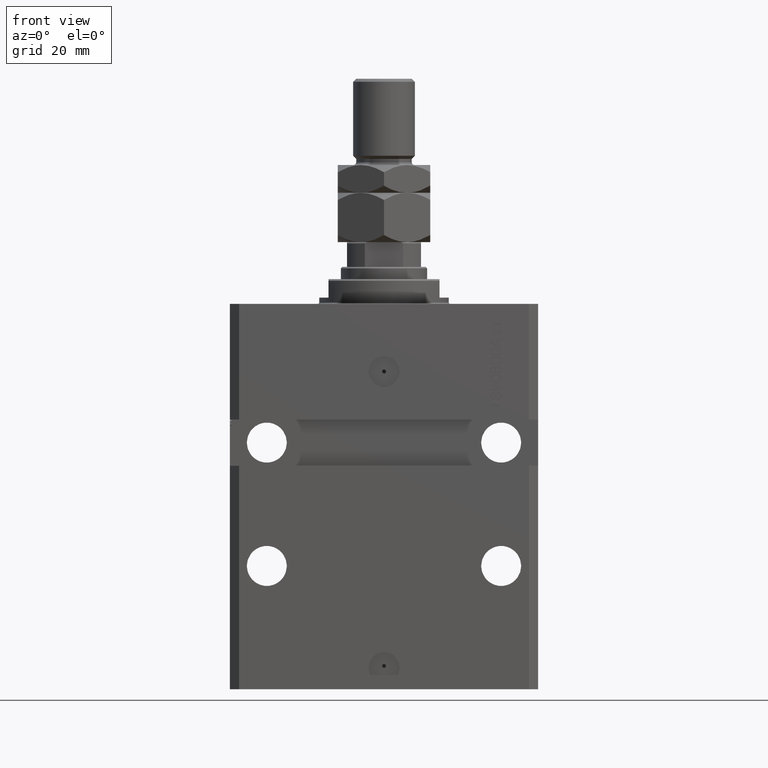
[diagram: clean part render]
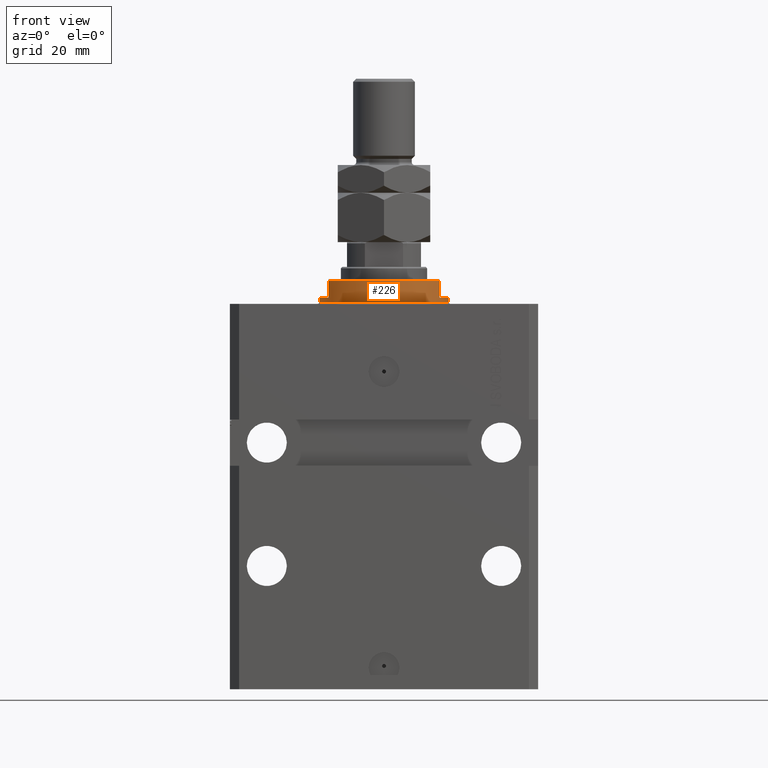
[diagram: same view with one face highlighted and labeled with its STEP entity id]
A machine part, front view. The second image highlights one B-rep face of the part: STEP entity #226.
In plain terms, the highlighted cylindrical surface (partial cylindrical patch) has radius 21 mm, axis along (0, 0, -1).
Its self-contained STEP definition (entity closure, byte-faithful):
#226 = ADVANCED_FACE ( 'NONE', ( #8007 ), #23352, .T. ) ;
#390 = CIRCLE ( 'NONE', #1179, 21.00000000000000000 ) ;
#1179 = AXIS2_PLACEMENT_3D ( 'NONE', #38164, #3935, #42176 ) ;
#1389 = AXIS2_PLACEMENT_3D ( 'NONE', #22813, #49499, #30618 ) ;
#1451 = CARTESIAN_POINT ( 'NONE',  ( 18.00000000000000000, -10.81665382639197048, -7.500000000000016875 ) ) ;
#1846 = ORIENTED_EDGE ( 'NONE', *, *, #33756, .F. ) ;
#3755 = VECTOR ( 'NONE', #30232, 1000.000000000000000 ) ;
#3935 = DIRECTION ( 'NONE',  ( 0.000000000000000000, 0.000000000000000000, -1.000000000000000000 ) ) ;
#4003 = CARTESIAN_POINT ( 'NONE',  ( -18.00000000000000000, -10.81665382639197048, -2.000000000000000000 ) ) ;
#4418 = DIRECTION ( 'NONE',  ( -0.000000000000000000, -0.000000000000000000, 1.000000000000000000 ) ) ;
#5644 = LINE ( 'NONE', #24774, #17434 ) ;
#5724 = VECTOR ( 'NONE', #7250, 1000.000000000000000 ) ;
#6271 = EDGE_CURVE ( 'NONE', #26811, #15064, #19535, .T. ) ;
#7250 = DIRECTION ( 'NONE',  ( 0.000000000000000000, 0.000000000000000000, -1.000000000000000000 ) ) ;
#7970 = DIRECTION ( 'NONE',  ( 0.000000000000000000, 0.000000000000000000, 1.000000000000000000 ) ) ;
#8007 = FACE_OUTER_BOUND ( 'NONE', #28872, .T. ) ;
#13257 = VERTEX_POINT ( 'NONE', #15748 ) ;
#14165 = EDGE_CURVE ( 'NONE', #45582, #41268, #5644, .T. ) ;
#14897 = CARTESIAN_POINT ( 'NONE',  ( 21.00000000000000000, 0.000000000000000000, -8.000000000000000000 ) ) ;
#15064 = VERTEX_POINT ( 'NONE', #28304 ) ;
#15525 = CARTESIAN_POINT ( 'NONE',  ( -21.00000000000000000, 2.571758278209441661E-15, -8.000000000000000000 ) ) ;
#15748 = CARTESIAN_POINT ( 'NONE',  ( 21.00000000000000000, 0.000000000000000000, -0.5000000000000004441 ) ) ;
#15813 = AXIS2_PLACEMENT_3D ( 'NONE', #18621, #34475, #33712 ) ;
#16973 = ORIENTED_EDGE ( 'NONE', *, *, #49595, .F. ) ;
#17434 = VECTOR ( 'NONE', #36832, 1000.000000000000000 ) ;
#17517 = ORIENTED_EDGE ( 'NONE', *, *, #6271, .F. ) ;
#18496 = ORIENTED_EDGE ( 'NONE', *, *, #42290, .T. ) ;
#18621 = CARTESIAN_POINT ( 'NONE',  ( 0.000000000000000000, 0.000000000000000000, -2.000000000000000000 ) ) ;
#19410 = LINE ( 'NONE', #14897, #3755 ) ;
#19535 = LINE ( 'NONE', #15525, #35616 ) ;
#22813 = CARTESIAN_POINT ( 'NONE',  ( 0.000000000000000000, 0.000000000000000000, -0.5000000000000004441 ) ) ;
#22970 = CIRCLE ( 'NONE', #32630, 21.00000000000000000 ) ;
#23352 = CYLINDRICAL_SURFACE ( 'NONE', #39571, 21.00000000000000000 ) ;
#23605 = CARTESIAN_POINT ( 'NONE',  ( 0.000000000000000000, 0.000000000000000000, -8.000000000000000000 ) ) ;
#24774 = CARTESIAN_POINT ( 'NONE',  ( -18.00000000000000000, -10.81665382639197048, -8.000000000000000000 ) ) ;
#26200 = CARTESIAN_POINT ( 'NONE',  ( -18.00000000000000000, -10.81665382639197048, -7.500000000000017764 ) ) ;
#26418 = VERTEX_POINT ( 'NONE', #1451 ) ;
#26811 = VERTEX_POINT ( 'NONE', #41845 ) ;
#27123 = LINE ( 'NONE', #33905, #5724 ) ;
#28304 = CARTESIAN_POINT ( 'NONE',  ( -21.00000000000000000, 2.571758278209441661E-15, -0.5000000000000004441 ) ) ;
#28872 = EDGE_LOOP ( 'NONE', ( #17517, #41615, #40464, #43007, #16973, #1846, #46639, #18496 ) ) ;
#30232 = DIRECTION ( 'NONE',  ( -0.000000000000000000, -0.000000000000000000, 1.000000000000000000 ) ) ;
#30618 = DIRECTION ( 'NONE',  ( 1.000000000000000000, 0.000000000000000000, 0.000000000000000000 ) ) ;
#31914 = DIRECTION ( 'NONE',  ( -0.000000000000000000, -0.000000000000000000, 1.000000000000000000 ) ) ;
#32630 = AXIS2_PLACEMENT_3D ( 'NONE', #38178, #7970, #34640 ) ;
#33712 = DIRECTION ( 'NONE',  ( -1.000000000000000000, 0.000000000000000000, 0.000000000000000000 ) ) ;
#33756 = EDGE_CURVE ( 'NONE', #48870, #43524, #390, .T. ) ;
#33905 = CARTESIAN_POINT ( 'NONE',  ( 18.00000000000000000, -10.81665382639197048, -8.000000000000000000 ) ) ;
#34155 = CARTESIAN_POINT ( 'NONE',  ( 21.00000000000000000, 0.000000000000000000, -2.000000000000000000 ) ) ;
#34475 = DIRECTION ( 'NONE',  ( 0.000000000000000000, 0.000000000000000000, -1.000000000000000000 ) ) ;
#34640 = DIRECTION ( 'NONE',  ( -1.000000000000000000, 0.000000000000000000, 0.000000000000000000 ) ) ;
#35616 = VECTOR ( 'NONE', #4418, 1000.000000000000000 ) ;
#35968 = EDGE_CURVE ( 'NONE', #41268, #26418, #22970, .T. ) ;
#36832 = DIRECTION ( 'NONE',  ( 0.000000000000000000, 0.000000000000000000, -1.000000000000000000 ) ) ;
#36901 = EDGE_CURVE ( 'NONE', #45582, #26811, #38285, .T. ) ;
#38164 = CARTESIAN_POINT ( 'NONE',  ( 0.000000000000000000, 0.000000000000000000, -2.000000000000000000 ) ) ;
#38178 = CARTESIAN_POINT ( 'NONE',  ( 0.000000000000000000, 0.000000000000000000, -7.500000000000016875 ) ) ;
#38285 = CIRCLE ( 'NONE', #15813, 21.00000000000000000 ) ;
#39571 = AXIS2_PLACEMENT_3D ( 'NONE', #23605, #31914, #46274 ) ;
#40464 = ORIENTED_EDGE ( 'NONE', *, *, #14165, .T. ) ;
#41268 = VERTEX_POINT ( 'NONE', #26200 ) ;
#41446 = EDGE_CURVE ( 'NONE', #48870, #13257, #19410, .T. ) ;
#41615 = ORIENTED_EDGE ( 'NONE', *, *, #36901, .F. ) ;
#41845 = CARTESIAN_POINT ( 'NONE',  ( -21.00000000000000000, 2.571758278209441661E-15, -2.000000000000000000 ) ) ;
#42176 = DIRECTION ( 'NONE',  ( -1.000000000000000000, 0.000000000000000000, 0.000000000000000000 ) ) ;
#42290 = EDGE_CURVE ( 'NONE', #13257, #15064, #48014, .T. ) ;
#43007 = ORIENTED_EDGE ( 'NONE', *, *, #35968, .T. ) ;
#43524 = VERTEX_POINT ( 'NONE', #48701 ) ;
#45582 = VERTEX_POINT ( 'NONE', #4003 ) ;
#46274 = DIRECTION ( 'NONE',  ( 1.000000000000000000, 0.000000000000000000, 0.000000000000000000 ) ) ;
#46639 = ORIENTED_EDGE ( 'NONE', *, *, #41446, .T. ) ;
#48014 = CIRCLE ( 'NONE', #1389, 21.00000000000000000 ) ;
#48701 = CARTESIAN_POINT ( 'NONE',  ( 18.00000000000000000, -10.81665382639197048, -2.000000000000000000 ) ) ;
#48870 = VERTEX_POINT ( 'NONE', #34155 ) ;
#49499 = DIRECTION ( 'NONE',  ( -0.000000000000000000, -0.000000000000000000, -1.000000000000000000 ) ) ;
#49595 = EDGE_CURVE ( 'NONE', #43524, #26418, #27123, .T. ) ;